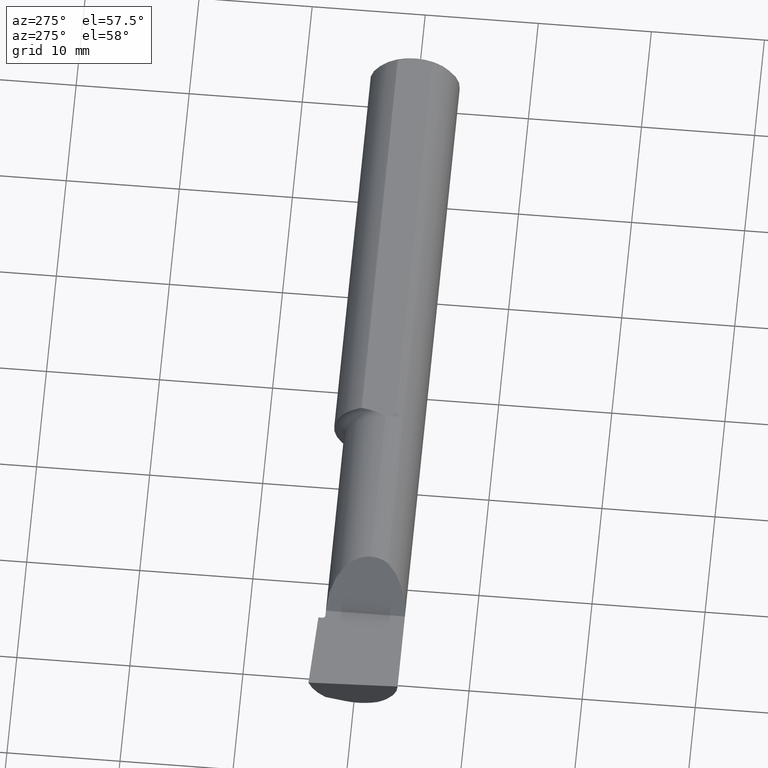
[diagram: clean part render]
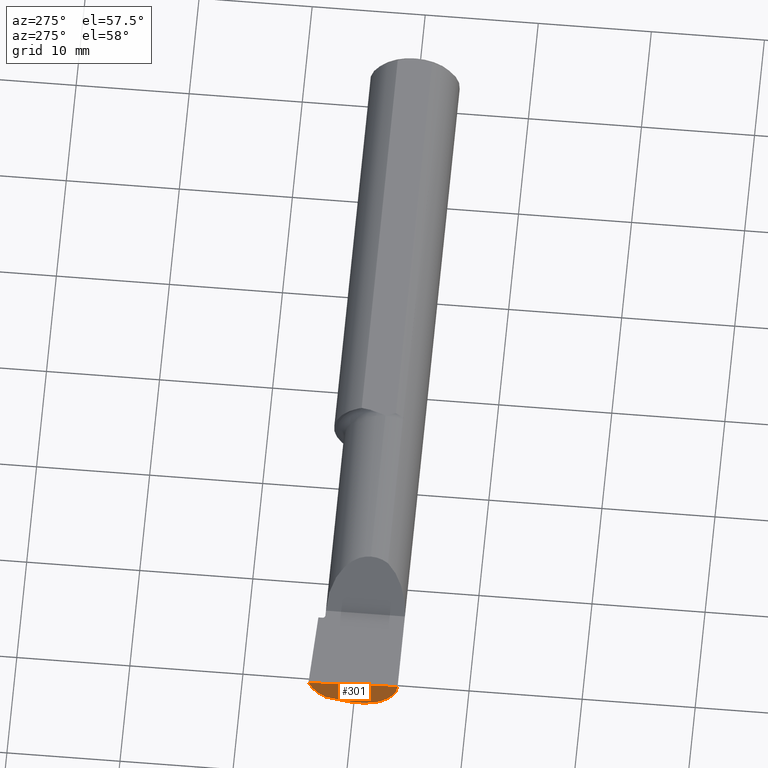
[diagram: same view with one face highlighted and labeled with its STEP entity id]
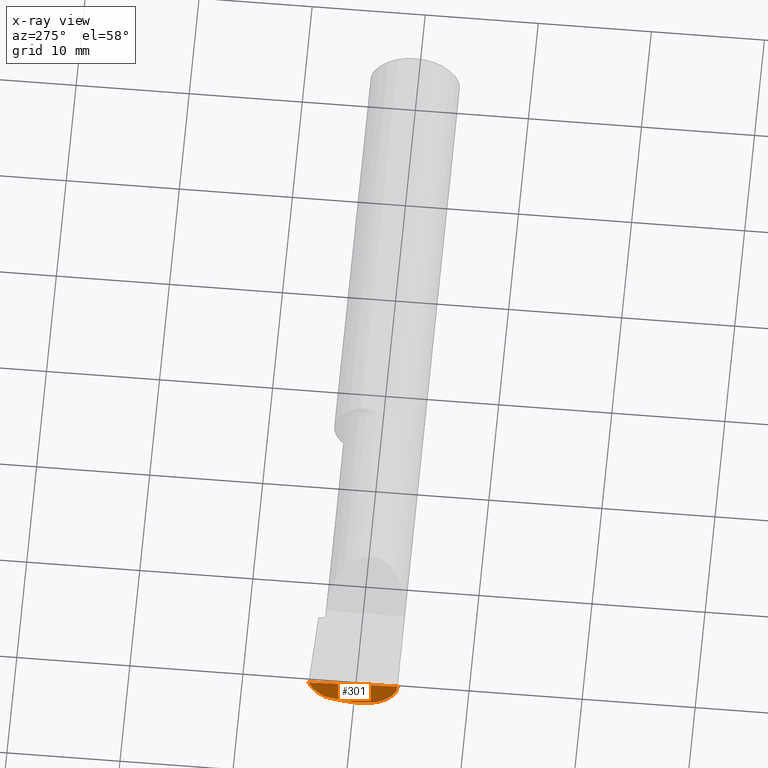
[diagram: x-ray of the same camera — body ghosted, the highlighted face saturated]
A machine part, auxiliary view. The second image highlights one B-rep face of the part: STEP entity #301.
The next image is the same camera in x-ray: the body ghosted, the highlighted face saturated — about 0% of this face is hidden behind the body in this view.
In plain terms, the highlighted planar face has unit normal (-0.992, -0.0344, -0.1219).
Its self-contained STEP definition (entity closure, byte-faithful):
#3 = CARTESIAN_POINT ( 'NONE',  ( -2.484581445594568727, 0.09576735185321454125, -0.1091794601134913889 ) ) ;
#12 = EDGE_CURVE ( 'NONE', #191, #582, #621, .T. ) ;
#15 = CARTESIAN_POINT ( 'NONE',  ( -2.479018954091639415, 0.02568722648642992809, -0.1346865397607137915 ) ) ;
#20 = CARTESIAN_POINT ( 'NONE',  ( -2.500000000000000000, 0.1536194554637218546, 0.000000000000000000 ) ) ;
#33 = CARTESIAN_POINT ( 'NONE',  ( -2.476130359589496788, -0.02500000000000002220, -0.1439000000000001112 ) ) ;
#38 = CARTESIAN_POINT ( 'NONE',  ( -2.500000000000000000, 0.1536194554637218546, 0.000000000000000000 ) ) ;
#51 = ORIENTED_EDGE ( 'NONE', *, *, #145, .F. ) ;
#54 = ORIENTED_EDGE ( 'NONE', *, *, #680, .F. ) ;
#71 = CARTESIAN_POINT ( 'NONE',  ( -2.482667168175673122, -0.1560999999999999888, -0.05371247775559874482 ) ) ;
#96 = CARTESIAN_POINT ( 'NONE',  ( -2.494605827839287304, 0.1454635380981003923, -0.04160498188424495425 ) ) ;
#129 = VECTOR ( 'NONE', #649, 39.37007874015748143 ) ;
#141 = CARTESIAN_POINT ( 'NONE',  ( -2.475676552398977215, -0.08569999999999922125, -0.1304711462354804230 ) ) ;
#145 = EDGE_CURVE ( 'NONE', #582, #698, #465, .T. ) ;
#152 = VERTEX_POINT ( 'NONE', #20 ) ;
#183 = CARTESIAN_POINT ( 'NONE',  ( -2.489266190342419360, -0.1561000000000000165, 3.826894855694925850E-18 ) ) ;
#191 = VERTEX_POINT ( 'NONE', #183 ) ;
#192 = EDGE_CURVE ( 'NONE', #698, #739, #413, .T. ) ;
#230 = CARTESIAN_POINT ( 'NONE',  ( -2.499553225608604823, 0.1407279727905360600, 3.826894855694925850E-18 ) ) ;
#233 = CARTESIAN_POINT ( 'NONE',  ( -2.478902233428061486, 0.02421669862456291358, -0.1352217681310924902 ) ) ;
#252 = ORIENTED_EDGE ( 'NONE', *, *, #192, .F. ) ;
#262 = DIRECTION ( 'NONE',  ( -0.1219414168599299575, 0.000000000000000000, 0.9925372994775525370 ) ) ;
#301 = ADVANCED_FACE ( 'NONE', ( #624 ), #627, .T. ) ;
#311 = VECTOR ( 'NONE', #657, 39.37007874015748143 ) ;
#357 = CARTESIAN_POINT ( 'NONE',  ( -2.476130359589496788, -0.02500000000000002220, -0.1439000000000001112 ) ) ;
#369 = CARTESIAN_POINT ( 'NONE',  ( -2.475676552398977215, -0.08569999999999922125, -0.1304711462354804230 ) ) ;
#373 = EDGE_CURVE ( 'NONE', #518, #152, #552, .T. ) ;
#392 = ORIENTED_EDGE ( 'NONE', *, *, #713, .T. ) ;
#413 =( BOUNDED_CURVE ( )  B_SPLINE_CURVE ( 3, ( #430, #664, #487, #551 ),
 .UNSPECIFIED., .F., .T. ) 
 B_SPLINE_CURVE_WITH_KNOTS ( ( 4, 4 ),
 ( 0.2749416817183363282, 0.6240075321171963951 ),
 .UNSPECIFIED. ) 
 CURVE ( )  GEOMETRIC_REPRESENTATION_ITEM ( )  RATIONAL_B_SPLINE_CURVE ( ( 1.000000000000000000, 0.9898718353414723836, 0.9898718353414723836, 1.000000000000000000 ) ) 
 REPRESENTATION_ITEM ( '' )  );
#417 = LINE ( 'NONE', #230, #129 ) ;
#430 = CARTESIAN_POINT ( 'NONE',  ( -2.476130359589496788, -0.02500000000000002220, -0.1439000000000001112 ) ) ;
#442 = CARTESIAN_POINT ( 'NONE',  ( -2.406957976829792401, 0.1568685545078939703, -0.7582283612889448854 ) ) ;
#465 =( BOUNDED_CURVE ( )  B_SPLINE_CURVE ( 3, ( #369, #568, #557, #33 ),
 .UNSPECIFIED., .F., .F. ) 
 B_SPLINE_CURVE_WITH_KNOTS ( ( 4, 4 ),
 ( 6.122674497807369498, 6.558126988897922338 ),
 .UNSPECIFIED. ) 
 CURVE ( )  GEOMETRIC_REPRESENTATION_ITEM ( )  RATIONAL_B_SPLINE_CURVE ( ( 1.000000000000000000, 0.9842607512044747597, 0.9842607512044747597, 1.000000000000000000 ) ) 
 REPRESENTATION_ITEM ( '' )  );
#481 = CARTESIAN_POINT ( 'NONE',  ( -2.477743596163800799, -0.1305938407426047165, -0.1009826174484543537 ) ) ;
#487 = CARTESIAN_POINT ( 'NONE',  ( -2.477647009804057276, 0.008402520951239019972, -0.1409776580835795656 ) ) ;
#499 = CARTESIAN_POINT ( 'NONE',  ( -2.489315288308734164, 0.1256128547571745691, -0.07906752438118763715 ) ) ;
#504 = ORIENTED_EDGE ( 'NONE', *, *, #373, .F. ) ;
#518 = VERTEX_POINT ( 'NONE', #3 ) ;
#520 = EDGE_LOOP ( 'NONE', ( #54, #504, #392, #252, #51, #645 ) ) ;
#548 = CARTESIAN_POINT ( 'NONE',  ( -2.475676552398977215, -0.08569999999999922125, -0.1304711462354804230 ) ) ;
#551 = CARTESIAN_POINT ( 'NONE',  ( -2.478902233428061486, 0.02421669862456291358, -0.1352217681310924902 ) ) ;
#552 =( BOUNDED_CURVE ( )  B_SPLINE_CURVE ( 3, ( #570, #499, #96, #38 ),
 .UNSPECIFIED., .F., .F. ) 
 B_SPLINE_CURVE_WITH_KNOTS ( ( 4, 4 ),
 ( 4.206370596475371038, 4.793754225472294905 ),
 .UNSPECIFIED. ) 
 CURVE ( )  GEOMETRIC_REPRESENTATION_ITEM ( )  RATIONAL_B_SPLINE_CURVE ( ( 1.000000000000000000, 0.9714544434386382932, 0.9714544434386382932, 1.000000000000000000 ) ) 
 REPRESENTATION_ITEM ( '' )  );
#557 = CARTESIAN_POINT ( 'NONE',  ( -2.475400702430881950, -0.04605394310600616214, -0.1439000000000001112 ) ) ;
#568 = CARTESIAN_POINT ( 'NONE',  ( -2.475247014433751946, -0.06661082633900398953, -0.1393521354400291679 ) ) ;
#570 = CARTESIAN_POINT ( 'NONE',  ( -2.484581445594568727, 0.09576735185321454125, -0.1091794601134913889 ) ) ;
#573 = DIRECTION ( 'NONE',  ( -0.9919506264397697226, -0.03437759245049914342, -0.1218693392246628371 ) ) ;
#582 = VERTEX_POINT ( 'NONE', #141 ) ;
#586 = LINE ( 'NONE', #15, #311 ) ;
#621 =( BOUNDED_CURVE ( )  B_SPLINE_CURVE ( 3, ( #747, #71, #481, #548 ),
 .UNSPECIFIED., .F., .T. ) 
 B_SPLINE_CURVE_WITH_KNOTS ( ( 4, 4 ),
 ( 4.987330662103025780, 5.976951217326474719 ),
 .UNSPECIFIED. ) 
 CURVE ( )  GEOMETRIC_REPRESENTATION_ITEM ( )  RATIONAL_B_SPLINE_CURVE ( ( 1.000000000000000000, 0.9200392120919966832, 0.9200392120919966832, 1.000000000000000000 ) ) 
 REPRESENTATION_ITEM ( '' )  );
#624 = FACE_OUTER_BOUND ( 'NONE', #520, .T. ) ;
#627 = PLANE ( 'NONE',  #641 ) ;
#641 = AXIS2_PLACEMENT_3D ( 'NONE', #442, #573, #262 ) ;
#645 = ORIENTED_EDGE ( 'NONE', *, *, #12, .F. ) ;
#649 = DIRECTION ( 'NONE',  ( 0.03463576215158579996, -0.9994000019912840926, 0.000000000000000000 ) ) ;
#657 = DIRECTION ( 'NONE',  ( 0.07437990725530781166, -0.9370896517296887218, -0.3410727400684822053 ) ) ;
#664 = CARTESIAN_POINT ( 'NONE',  ( -2.476713598110543035, -0.008170903630063763509, -0.1439000000000001112 ) ) ;
#680 = EDGE_CURVE ( 'NONE', #152, #191, #417, .T. ) ;
#698 = VERTEX_POINT ( 'NONE', #357 ) ;
#713 = EDGE_CURVE ( 'NONE', #518, #739, #586, .T. ) ;
#739 = VERTEX_POINT ( 'NONE', #233 ) ;
#747 = CARTESIAN_POINT ( 'NONE',  ( -2.489266190342419360, -0.1561000000000000165, 3.826894855694925850E-18 ) ) ;